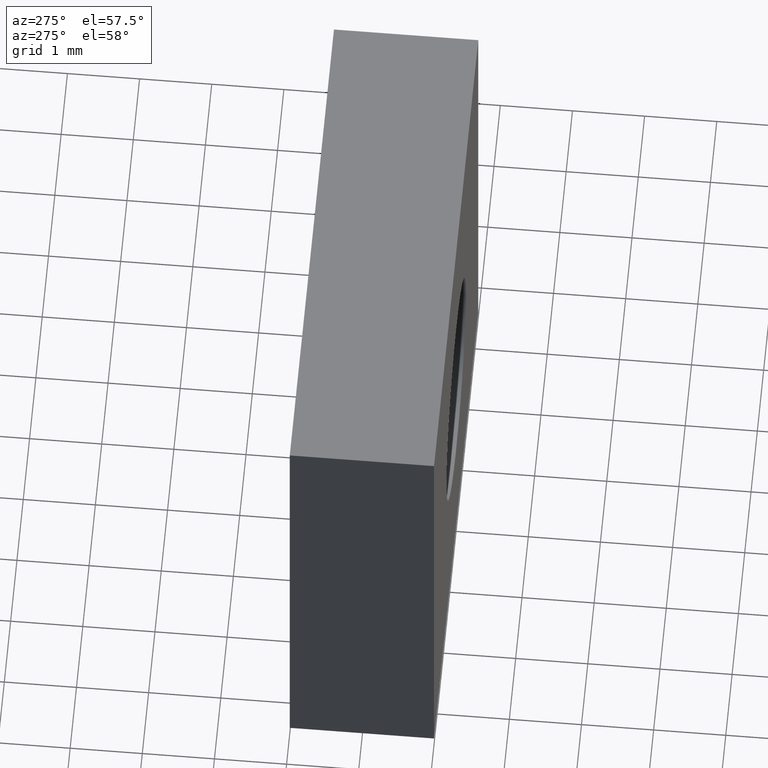
[diagram: clean part render]
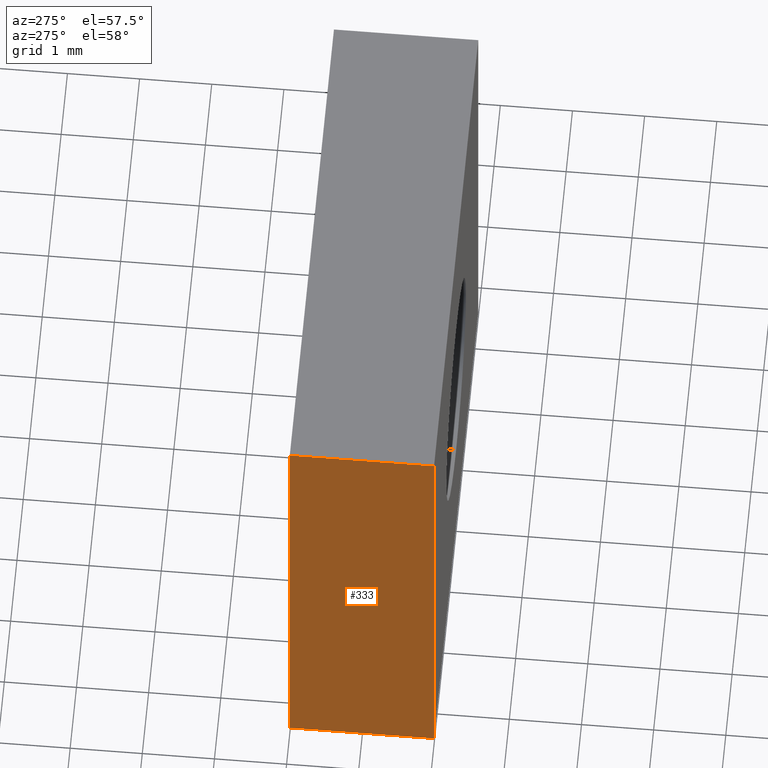
[diagram: same view with one face highlighted and labeled with its STEP entity id]
A machine part, auxiliary view. The second image highlights one B-rep face of the part: STEP entity #333.
In plain terms, the highlighted planar face has unit normal (1, 0, -0).
Its self-contained STEP definition (entity closure, byte-faithful):
#2 = CARTESIAN_POINT ( 'NONE',  ( -3.499999999999999600, 2.000000000000000000, -3.500000000000000000 ) ) ;
#37 = CARTESIAN_POINT ( 'NONE',  ( -3.499999999999999100, 2.000000000000000000, 3.500000000000000900 ) ) ;
#42 = PLANE ( 'NONE',  #367 ) ;
#48 = VERTEX_POINT ( 'NONE', #258 ) ;
#51 = ORIENTED_EDGE ( 'NONE', *, *, #176, .T. ) ;
#56 = FACE_OUTER_BOUND ( 'NONE', #208, .T. ) ;
#71 = VECTOR ( 'NONE', #407, 1000.000000000000000 ) ;
#103 = CARTESIAN_POINT ( 'NONE',  ( -3.499999999999999600, 2.000000000000000000, -3.500000000000000000 ) ) ;
#109 = CARTESIAN_POINT ( 'NONE',  ( -3.499999999999999600, 2.000000000000000000, -3.500000000000000000 ) ) ;
#111 = ORIENTED_EDGE ( 'NONE', *, *, #430, .F. ) ;
#114 = LINE ( 'NONE', #109, #321 ) ;
#129 = VERTEX_POINT ( 'NONE', #479 ) ;
#153 = LINE ( 'NONE', #103, #249 ) ;
#176 = EDGE_CURVE ( 'NONE', #129, #48, #153, .T. ) ;
#199 = DIRECTION ( 'NONE',  ( -6.195440985631454100E-017, 0.0000000000000000000, -1.000000000000000000 ) ) ;
#208 = EDGE_LOOP ( 'NONE', ( #459, #111, #329, #51 ) ) ;
#232 = DIRECTION ( 'NONE',  ( 6.195440985631452900E-017, 0.0000000000000000000, 1.000000000000000000 ) ) ;
#246 = CARTESIAN_POINT ( 'NONE',  ( -3.499999999999999100, 2.000000000000000000, 3.500000000000000900 ) ) ;
#249 = VECTOR ( 'NONE', #358, 1000.000000000000000 ) ;
#258 = CARTESIAN_POINT ( 'NONE',  ( -3.499999999999999600, 0.0000000000000000000, -3.500000000000000000 ) ) ;
#279 = DIRECTION ( 'NONE',  ( -0.0000000000000000000, -1.000000000000000000, -0.0000000000000000000 ) ) ;
#285 = CARTESIAN_POINT ( 'NONE',  ( -3.499999999999999100, 0.0000000000000000000, 3.500000000000000900 ) ) ;
#321 = VECTOR ( 'NONE', #232, 1000.000000000000000 ) ;
#329 = ORIENTED_EDGE ( 'NONE', *, *, #412, .F. ) ;
#332 = EDGE_CURVE ( 'NONE', #48, #362, #504, .T. ) ;
#333 = ADVANCED_FACE ( 'NONE', ( #56 ), #42, .F. ) ;
#358 = DIRECTION ( 'NONE',  ( -0.0000000000000000000, -1.000000000000000000, -0.0000000000000000000 ) ) ;
#362 = VERTEX_POINT ( 'NONE', #285 ) ;
#367 = AXIS2_PLACEMENT_3D ( 'NONE', #2, #493, #199 ) ;
#368 = CARTESIAN_POINT ( 'NONE',  ( -3.499999999999999600, 0.0000000000000000000, -3.500000000000000000 ) ) ;
#402 = VERTEX_POINT ( 'NONE', #246 ) ;
#404 = LINE ( 'NONE', #37, #506 ) ;
#407 = DIRECTION ( 'NONE',  ( 6.195440985631452900E-017, 0.0000000000000000000, 1.000000000000000000 ) ) ;
#412 = EDGE_CURVE ( 'NONE', #129, #402, #114, .T. ) ;
#430 = EDGE_CURVE ( 'NONE', #402, #362, #404, .T. ) ;
#459 = ORIENTED_EDGE ( 'NONE', *, *, #332, .T. ) ;
#479 = CARTESIAN_POINT ( 'NONE',  ( -3.499999999999999600, 2.000000000000000000, -3.500000000000000000 ) ) ;
#493 = DIRECTION ( 'NONE',  ( 1.000000000000000000, 0.0000000000000000000, -6.195440985631454100E-017 ) ) ;
#504 = LINE ( 'NONE', #368, #71 ) ;
#506 = VECTOR ( 'NONE', #279, 1000.000000000000000 ) ;